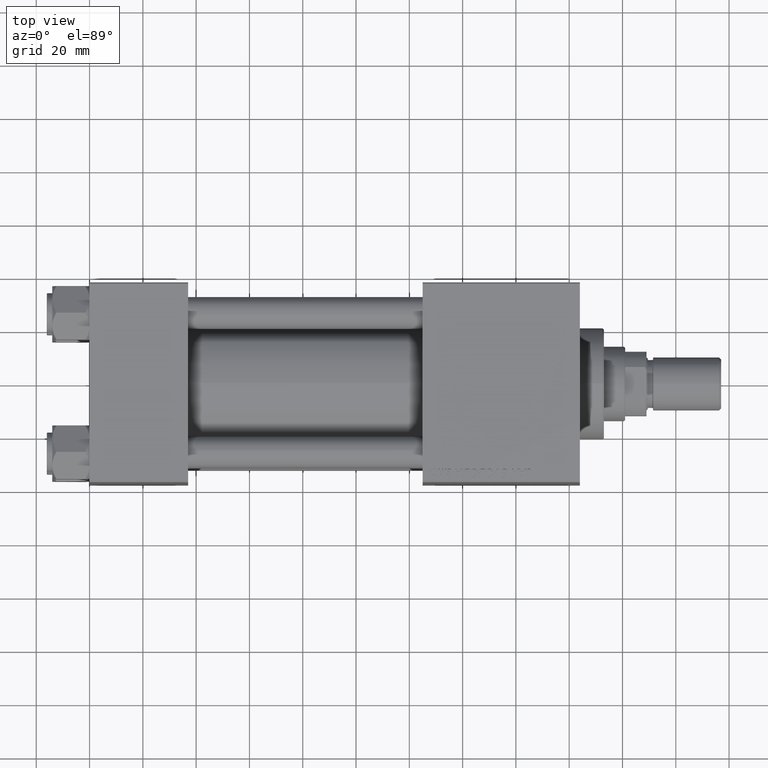
[diagram: clean part render]
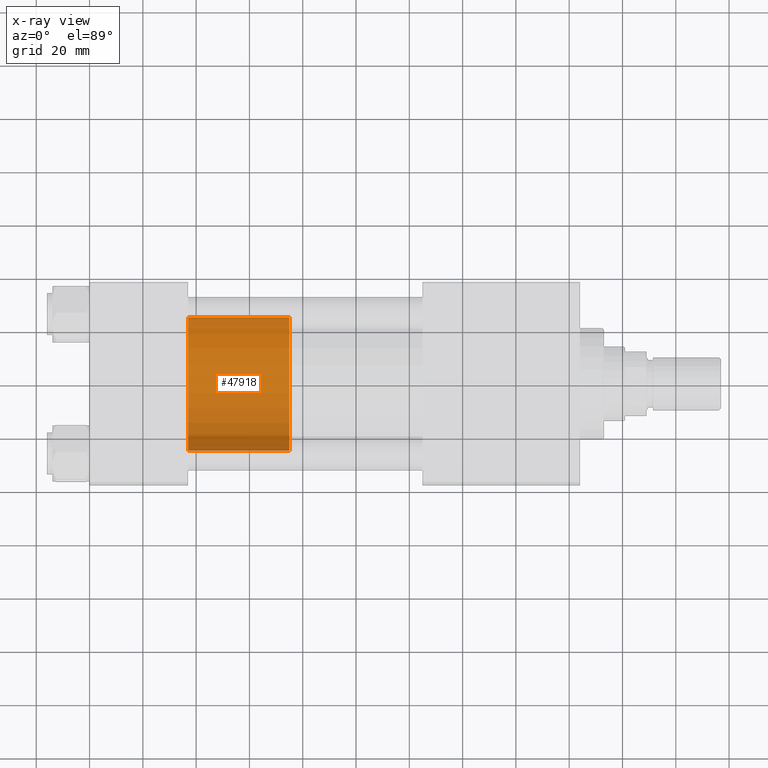
[diagram: x-ray — body ghosted, one internal face saturated and labeled with its STEP entity id]
A machine part, top view, then the same camera in x-ray: the body is ghosted and one INTERNAL B-rep face — a face not visible from any outside direction — is saturated and labeled: STEP entity #47918.
In plain terms, the highlighted cylindrical surface (partial cylindrical patch) has radius 25 mm, axis along (-1, 0, 0).
Its self-contained STEP definition (entity closure, byte-faithful):
#128 = DIRECTION ( 'NONE',  ( -0.000000000000000000, -0.000000000000000000, -1.000000000000000000 ) ) ;
#342 = DIRECTION ( 'NONE',  ( 1.000000000000000000, 0.000000000000000000, 0.000000000000000000 ) ) ;
#1072 = CARTESIAN_POINT ( 'NONE',  ( 25.00000000000000000, 3.061616997868383043E-15, 38.00000000000000000 ) ) ;
#1444 = EDGE_CURVE ( 'NONE', #29320, #23731, #6554, .T. ) ;
#2291 = ORIENTED_EDGE ( 'NONE', *, *, #1444, .T. ) ;
#3616 = ORIENTED_EDGE ( 'NONE', *, *, #13411, .F. ) ;
#3981 = CARTESIAN_POINT ( 'NONE',  ( -25.00000000000000000, 0.000000000000000000, 38.00000000000000000 ) ) ;
#5001 = AXIS2_PLACEMENT_3D ( 'NONE', #46721, #38296, #6521 ) ;
#5859 = ORIENTED_EDGE ( 'NONE', *, *, #24906, .T. ) ;
#6138 = AXIS2_PLACEMENT_3D ( 'NONE', #39443, #42763, #27390 ) ;
#6521 = DIRECTION ( 'NONE',  ( 1.000000000000000000, 0.000000000000000000, 0.000000000000000000 ) ) ;
#6554 = LINE ( 'NONE', #37812, #18377 ) ;
#7871 = CARTESIAN_POINT ( 'NONE',  ( -25.00000000000000000, 0.000000000000000000, 0.000000000000000000 ) ) ;
#7927 = FACE_OUTER_BOUND ( 'NONE', #29564, .T. ) ;
#11453 = VERTEX_POINT ( 'NONE', #43695 ) ;
#11767 = CYLINDRICAL_SURFACE ( 'NONE', #6138, 25.00000000000000000 ) ;
#13145 = CARTESIAN_POINT ( 'NONE',  ( 0.000000000000000000, 0.000000000000000000, 0.000000000000000000 ) ) ;
#13411 = EDGE_CURVE ( 'NONE', #11453, #17736, #39081, .T. ) ;
#15085 = CIRCLE ( 'NONE', #26523, 25.00000000000000000 ) ;
#16757 = EDGE_CURVE ( 'NONE', #29320, #11453, #48355, .T. ) ;
#17736 = VERTEX_POINT ( 'NONE', #7871 ) ;
#18377 = VECTOR ( 'NONE', #22189, 1000.000000000000000 ) ;
#22189 = DIRECTION ( 'NONE',  ( -0.000000000000000000, -0.000000000000000000, -1.000000000000000000 ) ) ;
#23731 = VERTEX_POINT ( 'NONE', #31602 ) ;
#24906 = EDGE_CURVE ( 'NONE', #23731, #17736, #15085, .T. ) ;
#26523 = AXIS2_PLACEMENT_3D ( 'NONE', #13145, #28753, #342 ) ;
#27390 = DIRECTION ( 'NONE',  ( -1.000000000000000000, 0.000000000000000000, 0.000000000000000000 ) ) ;
#27767 = VECTOR ( 'NONE', #128, 1000.000000000000000 ) ;
#28753 = DIRECTION ( 'NONE',  ( 0.000000000000000000, 0.000000000000000000, 1.000000000000000000 ) ) ;
#29320 = VERTEX_POINT ( 'NONE', #1072 ) ;
#29564 = EDGE_LOOP ( 'NONE', ( #38843, #2291, #5859, #3616 ) ) ;
#31602 = CARTESIAN_POINT ( 'NONE',  ( 25.00000000000000000, 3.061616997868383043E-15, 0.000000000000000000 ) ) ;
#37812 = CARTESIAN_POINT ( 'NONE',  ( 25.00000000000000000, 3.061616997868383043E-15, 38.00000000000000000 ) ) ;
#38296 = DIRECTION ( 'NONE',  ( 0.000000000000000000, 0.000000000000000000, 1.000000000000000000 ) ) ;
#38843 = ORIENTED_EDGE ( 'NONE', *, *, #16757, .F. ) ;
#39081 = LINE ( 'NONE', #3981, #27767 ) ;
#39443 = CARTESIAN_POINT ( 'NONE',  ( 0.000000000000000000, 0.000000000000000000, 38.00000000000000000 ) ) ;
#42763 = DIRECTION ( 'NONE',  ( -0.000000000000000000, -0.000000000000000000, -1.000000000000000000 ) ) ;
#43695 = CARTESIAN_POINT ( 'NONE',  ( -25.00000000000000000, 0.000000000000000000, 38.00000000000000000 ) ) ;
#46721 = CARTESIAN_POINT ( 'NONE',  ( 0.000000000000000000, 0.000000000000000000, 38.00000000000000000 ) ) ;
#47918 = ADVANCED_FACE ( 'NONE', ( #7927 ), #11767, .T. ) ;
#48355 = CIRCLE ( 'NONE', #5001, 25.00000000000000000 ) ;